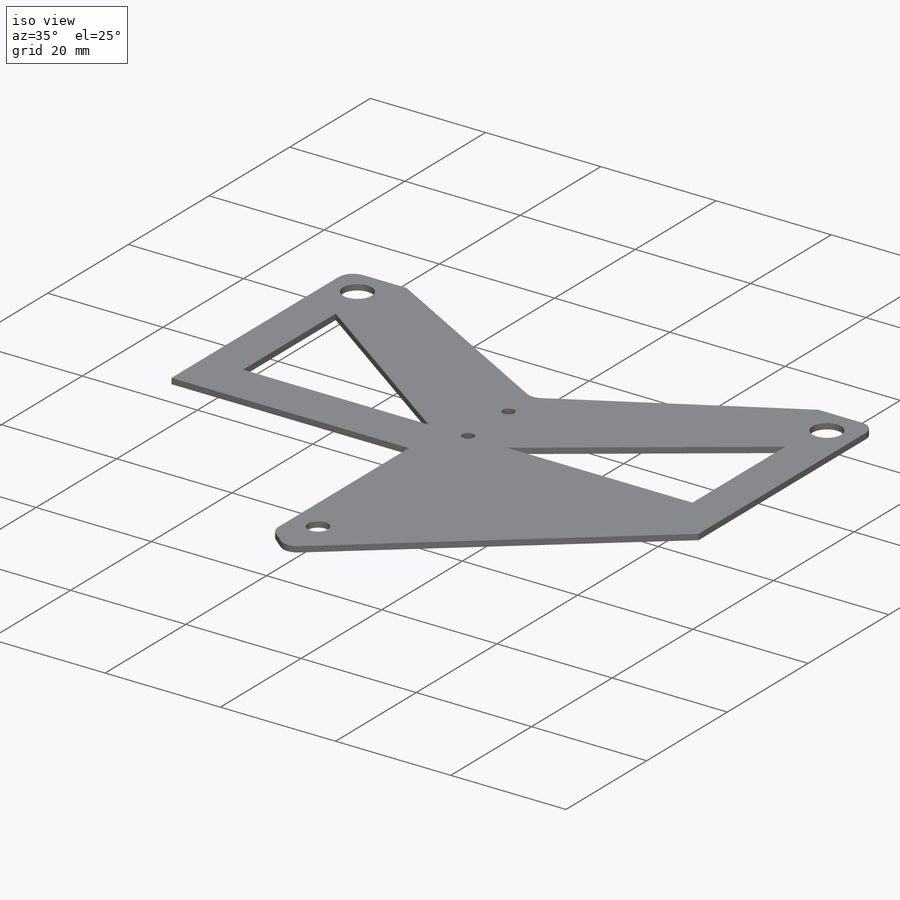
[diagram: iso view]
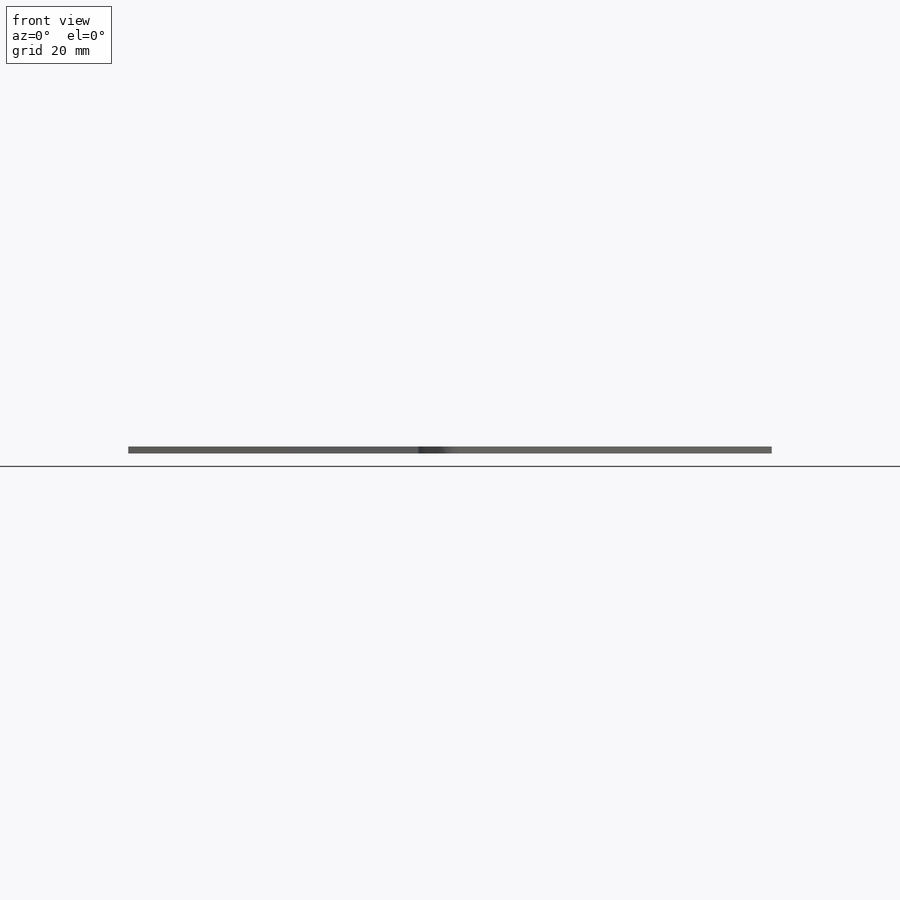
[diagram: front view]
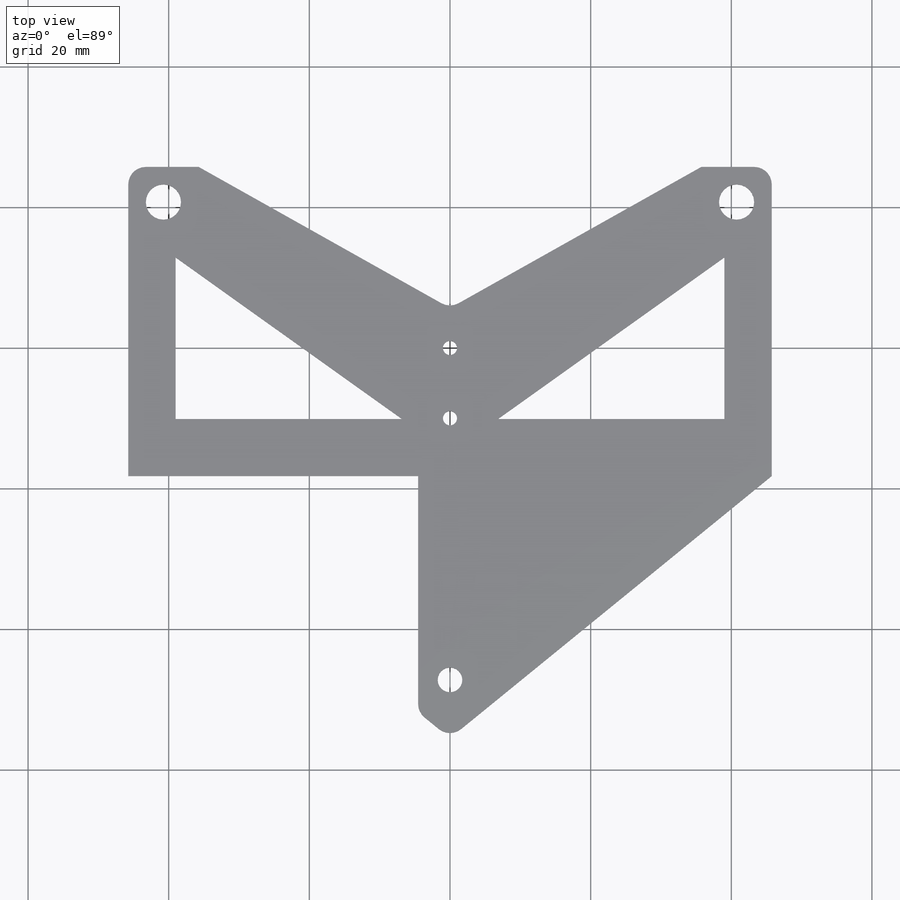
[diagram: top view]
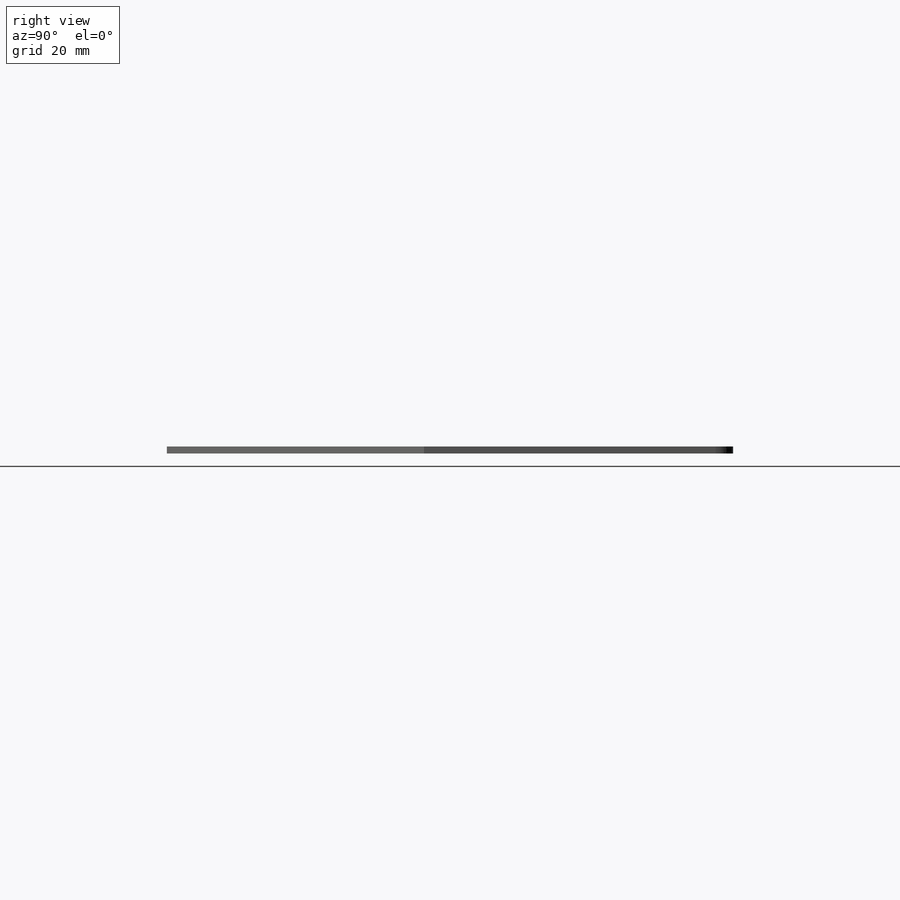
[diagram: right view]
SOLIDWORKS PART (.sldprt)
format: sldprt  version: not decoded by parser v0  size: 456,704 bytes
history: native  units: mm
features: sketch x23, cut_extrude x4, extrude x2, material x1, sheet_metal_op x1 + 6 further entries (+13 scaffold rows collapsed; 1 parser-record rows omitted)
feature tree (51):
  scaffold x13  (default folders/planes/origin — collapsed)
  material  "Material <not specified>"
  sketch  "Sketch1"  dims[c1.D1=~65.599099mm c1.D11=5.0mm c1.D12=5.0mm c1.D14=5.0mm c1.D17=5.0mm c1.D19=5.0mm c1.D23=2.1mm c1.D24=2.1mm c1.D26=3.0mm c1.D4=2.5mm c2.D1=80.0mm c2.D2=40.75mm c2.D3=5.0mm c2.D4=5.0mm c2.D5=5.0mm c2.D6=5.0mm c2.D7=40.75mm c2.D8=35.0mm c2.D9=38.0mm c2.D10=18.0mm c2.D13=10.0mm c2.D15=2.5mm c2.D16=18.0mm c2.D18=10.0mm c3.D15=2.5mm c3.D20=10.0mm c3.D21=10.0mm c3.D22=5.0mm c4.D21=10.0mm c4.D20=5.0mm c5.D21=5.0mm c5.D22=40.0mm c5.D5=6.5mm c5.D6=16.5mm c5.D25=30.0mm c5.D27=5.0mm c5.D8=35.0mm c5.D3=5.0mm c5.D4=5.0mm c6.D3=5.0mm]
  extrude  "Boss-Extrude1"  Depth=1mm
  sketch  "Sketch19"  dims[D1=2.5mm D4=2.0mm D5=2.0mm D2=10.0mm D3=20.0mm D6=10.0mm D7=~16.986545mm]
  sketch  "Sketch23"  dims[c1.D1=1.0mm c1.D4=90.0deg c1.D5=1.0 c1.D8=0.5mm c1.D9=0.5mm c2.D1=1.0mm c2.D2=500.0mm c2.D3=0.0mm c2.D6=2.15mm c2.D7=35.0mm]
  cut_extrude  "Cut-Extrude2"  Depth=10mm
  sketch  "Sketch20"  dims[c1.D1=3.5mm c1.D2=2.5mm c1.D3=2.5mm c2.D2=1.0mm c2.D3=30.0mm c3.D2=1.0mm]
  cut_extrude  "Cut-Extrude3"  Depth=10mm
  cut_extrude  "Cut-Extrude4"  [1 undecoded]
  sketch  "Sketch20<3>"  dims[D2=10.0mm]
  extrude  "Boss-Extrude2"  [1 undecoded]
  sketch  "Sketch20<4>"  dims[D1=1.0mm]
  sketch  "Sketch25"  dims[D1=2.5mm]
  cut_extrude  "Cut-Extrude5"  Depth=1mm
  sketch  "Bend-Lines3"
  sketch  "Bounding-Box3"
  sheet_metal_op  "Sheet-Metal22"
  "Flat-Pattern22"
  sketch  "Bend-Lines4"
  sketch  "Bounding-Box4"
  parser-record x1  (decoder bookkeeping rows leaked as tree rows — omitted from the tree; the rows remain in map.json)
  sketch  "Bend-Lines4"
  sketch  "Bounding-Box4"  dims[Sheet-Metal26=0.0 D1=10.0mm D2=500.0mm D3=0.0mm D7=1.0mm D6=500.0mm Flat-Pattern22=0.0deg]
  sketch  "Bend-Lines4"
  sketch  "Bounding-Box4"
  "Flatten-<EdgeBend2>3"  Sheet-Metal27=0 Flat-Pattern22=0deg
  sketch  "Bend-Lines4"
  sketch  "Bounding-Box4"
  "Flatten-<EdgeBend2>1"  Sheet-Metal28=0 Flat-Pattern22=0deg
  sketch  "Bend-Lines4"
  sketch  "Bounding-Box4"
  "Flatten-<EdgeBend2>3"  Sheet-Metal29=0 Flat-Pattern22=0deg
  sketch  "Bend-Lines4"
  sketch  "Bounding-Box4"
  "Flatten-<EdgeBend2>3"  Sheet-Metal30=0 Flat-Pattern22=0deg
  sketch  "Bend-Lines4"
  sketch  "Bounding-Box4"
  "Flatten-<EdgeBend2>3"
decode coverage: 12 of 30 modeling features carry decoded parameters; 6 rows unclassified (native names shown)
note: ~ marks probable driven/reference dimensions
note: 2 parameter values undecoded
note: suppression state not decoded; provenance and decode notes live in map.json
